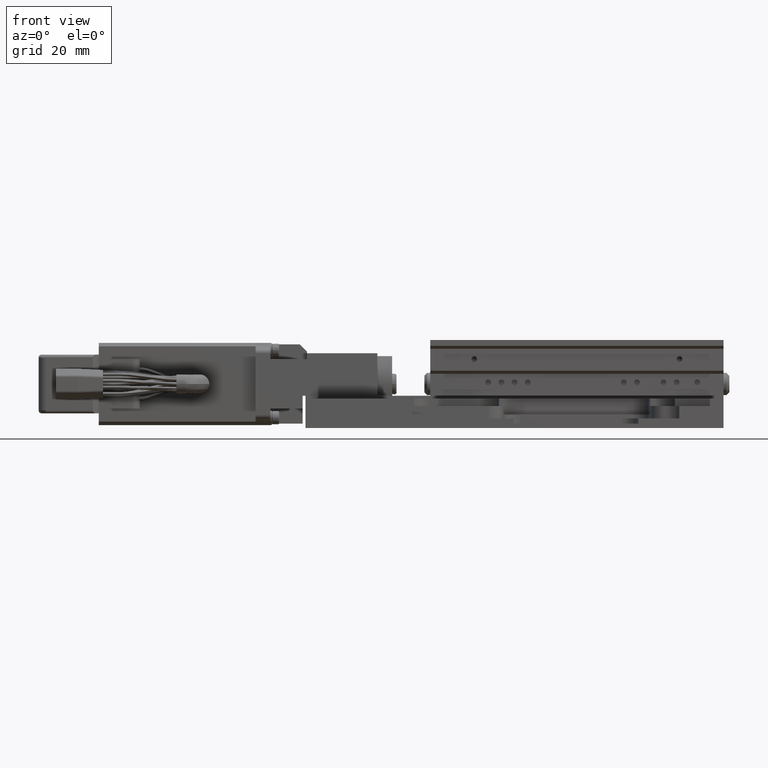
[diagram: clean part render]
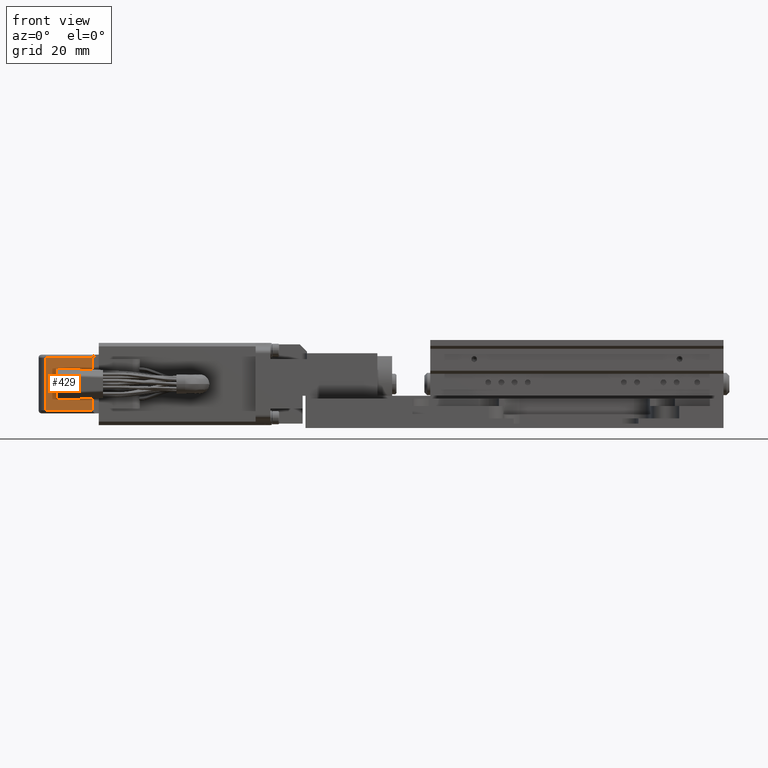
[diagram: same view with one face highlighted and labeled with its STEP entity id]
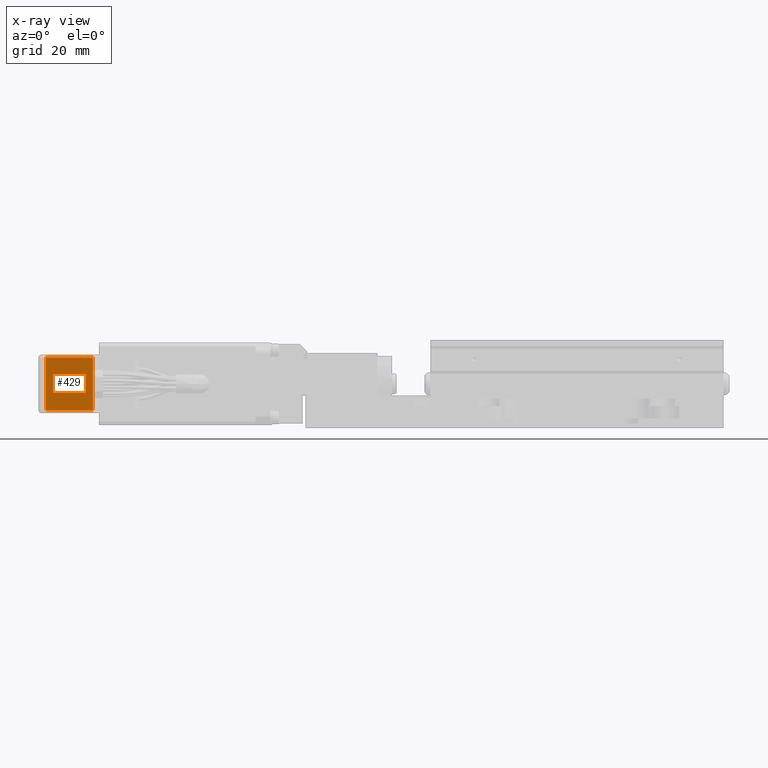
[diagram: x-ray of the same camera — body ghosted, the highlighted face saturated]
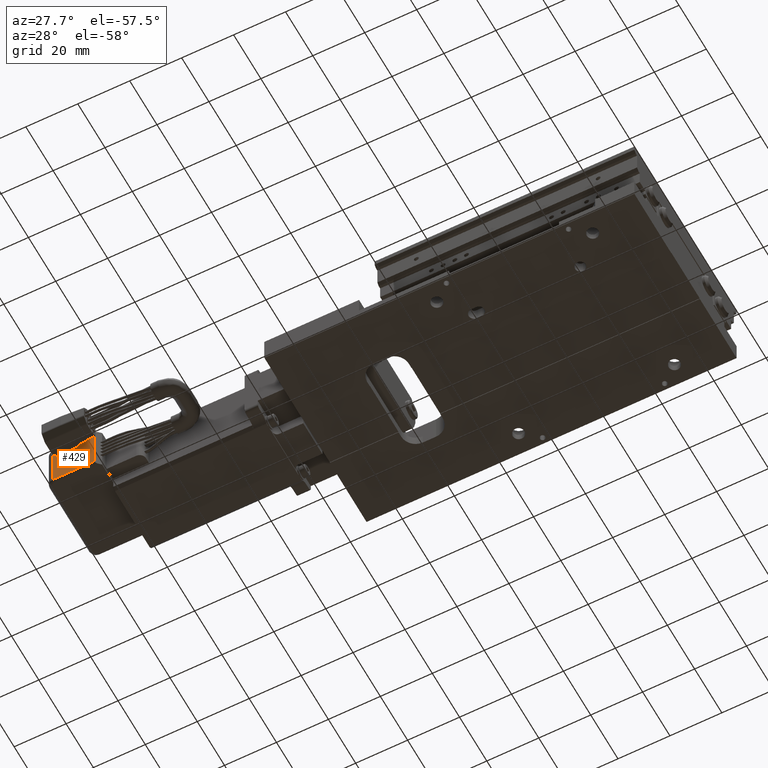
[diagram: same view with one face highlighted and labeled with its STEP entity id]
A machine part, front view. The second image highlights one B-rep face of the part: STEP entity #429.
The next image is the same camera in x-ray: the body ghosted, the highlighted face saturated — about 0% of this face is hidden behind the body in this view.
A second angle (auxiliary view) of the same face is appended — the face is thin or edge-on in the first view.
In plain terms, the highlighted planar face has unit normal (0, 1, -0).
Its self-contained STEP definition (entity closure, byte-faithful):
#429=ADVANCED_FACE('',(#4011),#4010,.F.);
#4010=PLANE('',#14149);
#4011=FACE_OUTER_BOUND('',#14150,.T.);
#14146=CARTESIAN_POINT('',(-1.63400000000E+02,-2.39999999990E+01,2.58000000000E+01));
#14147=DIRECTION('',(0.00000000000E+00,1.00000000000E+00,-1.73472347598E-16));
#14148=DIRECTION('',(0.00000000000E+00,-1.73472347598E-16,-1.00000000000E+00));
#14149=AXIS2_PLACEMENT_3D('',#14146,#14147,#14148);
#14150=EDGE_LOOP('',(#20121,#20122,#20123,#20124));
#20121=ORIENTED_EDGE('',*,*,#24562,.T.);
#20122=ORIENTED_EDGE('',*,*,#24549,.T.);
#20123=ORIENTED_EDGE('',*,*,#24564,.T.);
#20124=ORIENTED_EDGE('',*,*,#24580,.T.);
#24549=EDGE_CURVE('',#31362,#32553,#32612,.T.);
#24562=EDGE_CURVE('',#32697,#31362,#32698,.T.);
#24564=EDGE_CURVE('',#32553,#32710,#32711,.T.);
#24580=EDGE_CURVE('',#32710,#32697,#32816,.T.);
#31362=VERTEX_POINT('',#46447);
#32553=VERTEX_POINT('',#47441);
#32612=LINE('',#47479,#47480);
#32697=VERTEX_POINT('',#47527);
#32698=LINE('',#47528,#47529);
#32710=VERTEX_POINT('',#47536);
#32711=LINE('',#47537,#47538);
#32816=LINE('',#47600,#47601);
#46447=CARTESIAN_POINT('',(-1.81000000000E+02,-2.39999999990E+01,2.40000000000E+01));
#47441=CARTESIAN_POINT('',(-1.81000000000E+02,-2.39999999990E+01,6.00000000005E+00));
#47479=CARTESIAN_POINT('',(-1.81000000000E+02,-2.39999999990E+01,2.40000000000E+01));
#47480=VECTOR('',#47481,1.80000000000E+01);
#47481=DIRECTION('',(0.00000000000E+00,-1.97372982156E-16,-1.00000000000E+00));
#47527=CARTESIAN_POINT('',(-1.65000000002E+02,-2.39999999990E+01,2.40000000000E+01));
#47528=CARTESIAN_POINT('',(-1.65000000002E+02,-2.39999999990E+01,2.40000000000E+01));
#47529=VECTOR('',#47530,1.59999999976E+01);
#47530=DIRECTION('',(-1.00000000000E+00,2.22044604958E-16,-4.44089209916E-16));
#47536=CARTESIAN_POINT('',(-1.65000000002E+02,-2.39999999990E+01,6.00000000005E+00));
#47537=CARTESIAN_POINT('',(-1.81000000000E+02,-2.39999999990E+01,6.00000000005E+00));
#47538=VECTOR('',#47539,1.59999999976E+01);
#47539=DIRECTION('',(1.00000000000E+00,0.00000000000E+00,0.00000000000E+00));
#47600=CARTESIAN_POINT('',(-1.65000000000E+02,-2.39999999990E+01,6.00000000005E+00));
#47601=VECTOR('',#47602,1.80000000000E+01);
#47602=DIRECTION('',(0.00000000000E+00,0.00000000000E+00,1.00000000000E+00));